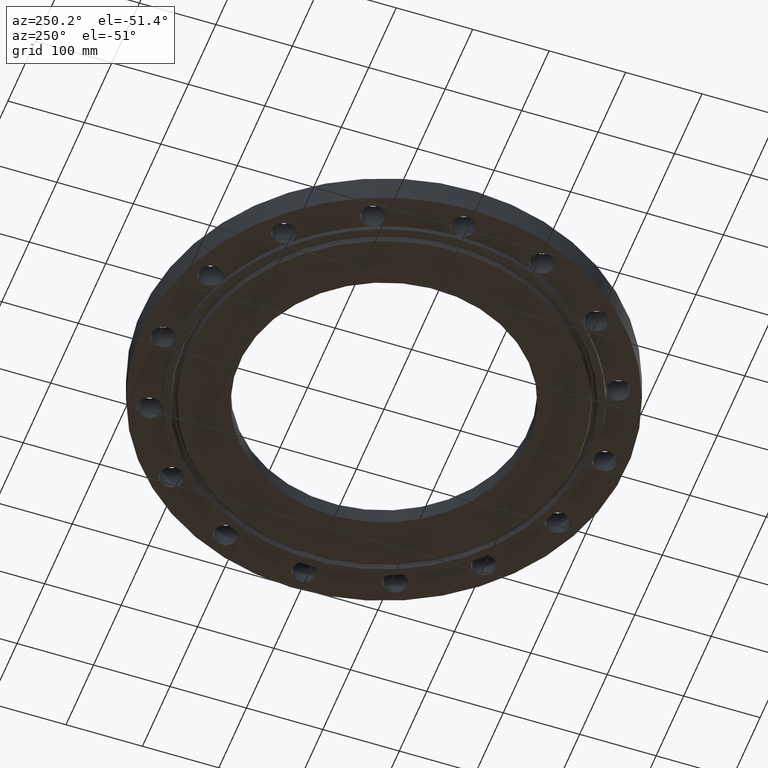
[diagram: clean part render]
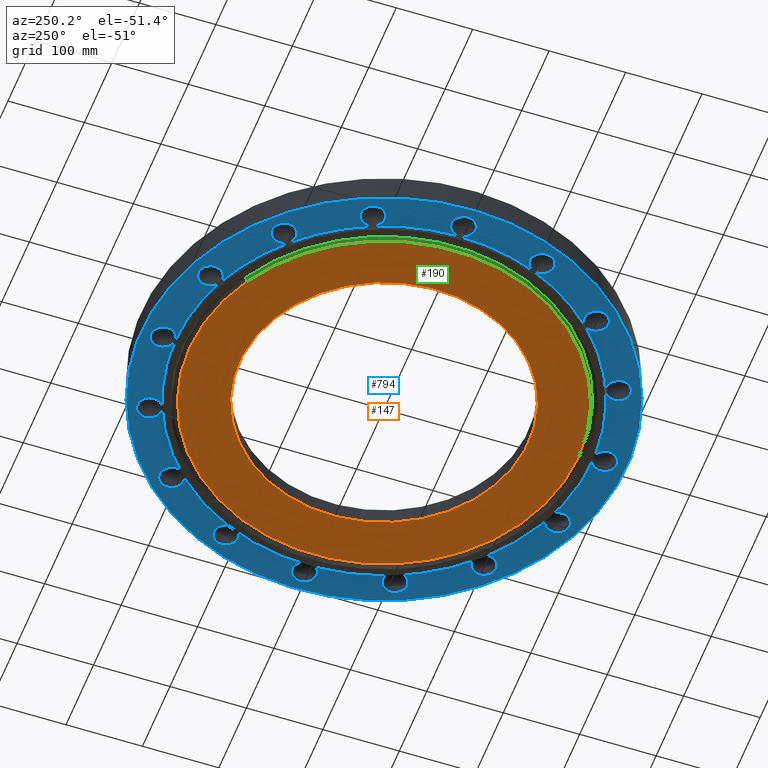
[diagram: same view with three faces highlighted in distinct colors, each labeled with its STEP entity id]
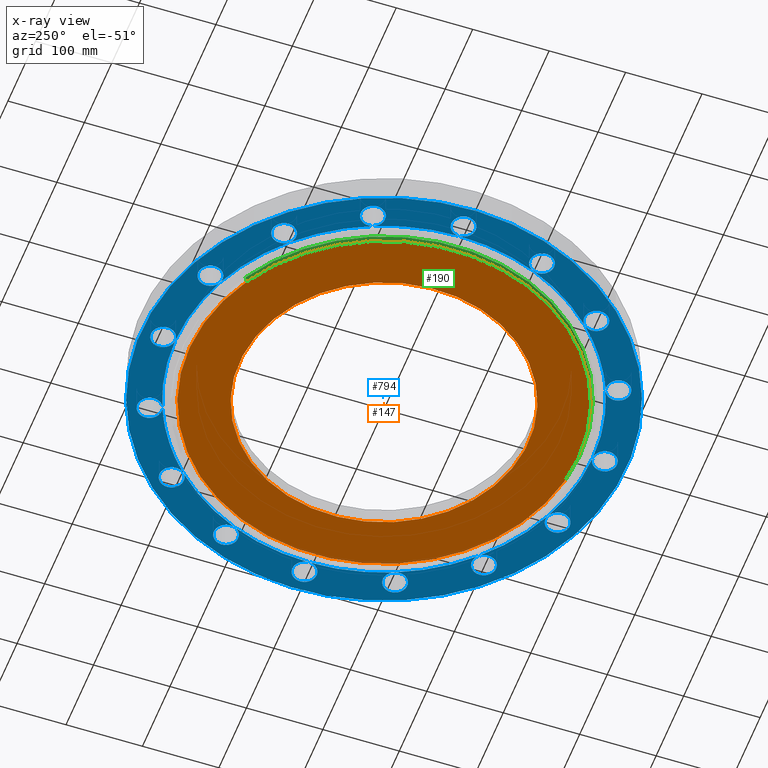
[diagram: x-ray of the same camera — body ghosted, the three highlighted faces saturated]
A machine part, auxiliary view with three faces highlighted in distinct colors.
The next image is the same camera in x-ray (body ghosted, the three faces saturated) — at least one of them is partly hidden behind the body in this view.
Their STEP definitions:

[orange] entity #147 — the highlighted planar face has unit normal (0, 0, -1).
#91=AXIS2_PLACEMENT_3D('Circle Axis2P3D',#89,#90,$) ;
#110=AXIS2_PLACEMENT_3D('Circle Axis2P3D',#108,#109,$) ;
#123=AXIS2_PLACEMENT_3D('Plane Axis2P3D',#120,#121,#122) ;
#127=AXIS2_PLACEMENT_3D('Circle Axis2P3D',#125,#126,$) ;
#136=AXIS2_PLACEMENT_3D('Circle Axis2P3D',#134,#135,$) ;
#86=CARTESIAN_POINT('Vertex',(3.56596715615,6.52745909537,-0.250000000001)) ;
#89=CARTESIAN_POINT('Axis2P3D Location',(0.,0.,-0.250000000001)) ;
#93=CARTESIAN_POINT('Vertex',(-3.56596715615,-6.52745909537,-0.250000000001)) ;
#108=CARTESIAN_POINT('Axis2P3D Location',(0.,0.,-0.250000000001)) ;
#120=CARTESIAN_POINT('Axis2P3D Location',(0.,7.43800000003,-0.250000000001)) ;
#125=CARTESIAN_POINT('Axis2P3D Location',(0.,1.1189649382E-015,-0.250000000001)) ;
#129=CARTESIAN_POINT('Vertex',(-4.8017464101,8.78953784647,-0.250000000001)) ;
#131=CARTESIAN_POINT('Vertex',(4.8017464101,-8.78953784647,-0.250000000001)) ;
#134=CARTESIAN_POINT('Axis2P3D Location',(-1.1189649382E-015,0.,-0.250000000001)) ;
#90=DIRECTION('Axis2P3D Direction',(0.,0.,-0.0393700787402)) ;
#109=DIRECTION('Axis2P3D Direction',(0.,0.,-0.0393700787402)) ;
#121=DIRECTION('Axis2P3D Direction',(0.,0.,-0.0393700787402)) ;
#122=DIRECTION('Axis2P3D XDirection',(0.0393700787402,0.,0.)) ;
#126=DIRECTION('Axis2P3D Direction',(0.,0.,-0.0393700787402)) ;
#135=DIRECTION('Axis2P3D Direction',(0.,0.,-0.0393700787402)) ;
#140=ORIENTED_EDGE('',*,*,#133,.T.) ;
#141=ORIENTED_EDGE('',*,*,#138,.T.) ;
#144=ORIENTED_EDGE('',*,*,#95,.F.) ;
#145=ORIENTED_EDGE('',*,*,#112,.F.) ;
#146=FACE_BOUND('',#143,.T.) ;
#147=ADVANCED_FACE('PartBody',(#142,#146),#124,.T.) ;
#92=CIRCLE('generated circle',#91,7.43800000003) ;
#111=CIRCLE('generated circle',#110,7.43800000003) ;
#128=CIRCLE('generated circle',#127,10.015625) ;
#137=CIRCLE('generated circle',#136,10.015625) ;
#95=EDGE_CURVE('',#87,#94,#92,.T.) ;
#112=EDGE_CURVE('',#94,#87,#111,.T.) ;
#133=EDGE_CURVE('',#130,#132,#128,.T.) ;
#138=EDGE_CURVE('',#132,#130,#137,.T.) ;
#139=EDGE_LOOP('',(#140,#141)) ;
#143=EDGE_LOOP('',(#144,#145)) ;
#142=FACE_OUTER_BOUND('',#139,.T.) ;
#124=PLANE('',#123) ;
#87=VERTEX_POINT('',#86) ;
#94=VERTEX_POINT('',#93) ;
#130=VERTEX_POINT('',#129) ;
#132=VERTEX_POINT('',#131) ;

[blue] entity #794 — the highlighted planar face has unit normal (0, 0, -1).
#242=AXIS2_PLACEMENT_3D('Circle Axis2P3D',#240,#241,$) ;
#249=AXIS2_PLACEMENT_3D('Circle Axis2P3D',#247,#248,$) ;
#256=AXIS2_PLACEMENT_3D('Circle Axis2P3D',#254,#255,$) ;
#263=AXIS2_PLACEMENT_3D('Circle Axis2P3D',#261,#262,$) ;
#270=AXIS2_PLACEMENT_3D('Circle Axis2P3D',#268,#269,$) ;
#277=AXIS2_PLACEMENT_3D('Circle Axis2P3D',#275,#276,$) ;
#284=AXIS2_PLACEMENT_3D('Circle Axis2P3D',#282,#283,$) ;
#291=AXIS2_PLACEMENT_3D('Circle Axis2P3D',#289,#290,$) ;
#298=AXIS2_PLACEMENT_3D('Circle Axis2P3D',#296,#297,$) ;
#325=AXIS2_PLACEMENT_3D('Circle Axis2P3D',#323,#324,$) ;
#332=AXIS2_PLACEMENT_3D('Circle Axis2P3D',#330,#331,$) ;
#339=AXIS2_PLACEMENT_3D('Circle Axis2P3D',#337,#338,$) ;
#346=AXIS2_PLACEMENT_3D('Circle Axis2P3D',#344,#345,$) ;
#353=AXIS2_PLACEMENT_3D('Circle Axis2P3D',#351,#352,$) ;
#360=AXIS2_PLACEMENT_3D('Circle Axis2P3D',#358,#359,$) ;
#367=AXIS2_PLACEMENT_3D('Circle Axis2P3D',#365,#366,$) ;
#374=AXIS2_PLACEMENT_3D('Circle Axis2P3D',#372,#373,$) ;
#381=AXIS2_PLACEMENT_3D('Circle Axis2P3D',#379,#380,$) ;
#402=AXIS2_PLACEMENT_3D('Plane Axis2P3D',#399,#400,#401) ;
#406=AXIS2_PLACEMENT_3D('Circle Axis2P3D',#404,#405,$) ;
#415=AXIS2_PLACEMENT_3D('Circle Axis2P3D',#413,#414,$) ;
#424=AXIS2_PLACEMENT_3D('Circle Axis2P3D',#422,#423,$) ;
#431=AXIS2_PLACEMENT_3D('Circle Axis2P3D',#429,#430,$) ;
#438=AXIS2_PLACEMENT_3D('Circle Axis2P3D',#436,#437,$) ;
#443=AXIS2_PLACEMENT_3D('Circle Axis2P3D',#441,#442,$) ;
#450=AXIS2_PLACEMENT_3D('Circle Axis2P3D',#448,#449,$) ;
#457=AXIS2_PLACEMENT_3D('Circle Axis2P3D',#455,#456,$) ;
#462=AXIS2_PLACEMENT_3D('Circle Axis2P3D',#460,#461,$) ;
#469=AXIS2_PLACEMENT_3D('Circle Axis2P3D',#467,#468,$) ;
#476=AXIS2_PLACEMENT_3D('Circle Axis2P3D',#474,#475,$) ;
#481=AXIS2_PLACEMENT_3D('Circle Axis2P3D',#479,#480,$) ;
#488=AXIS2_PLACEMENT_3D('Circle Axis2P3D',#486,#487,$) ;
#495=AXIS2_PLACEMENT_3D('Circle Axis2P3D',#493,#494,$) ;
#500=AXIS2_PLACEMENT_3D('Circle Axis2P3D',#498,#499,$) ;
#507=AXIS2_PLACEMENT_3D('Circle Axis2P3D',#505,#506,$) ;
#514=AXIS2_PLACEMENT_3D('Circle Axis2P3D',#512,#513,$) ;
#519=AXIS2_PLACEMENT_3D('Circle Axis2P3D',#517,#518,$) ;
#526=AXIS2_PLACEMENT_3D('Circle Axis2P3D',#524,#525,$) ;
#533=AXIS2_PLACEMENT_3D('Circle Axis2P3D',#531,#532,$) ;
#538=AXIS2_PLACEMENT_3D('Circle Axis2P3D',#536,#537,$) ;
#545=AXIS2_PLACEMENT_3D('Circle Axis2P3D',#543,#544,$) ;
#552=AXIS2_PLACEMENT_3D('Circle Axis2P3D',#550,#551,$) ;
#557=AXIS2_PLACEMENT_3D('Circle Axis2P3D',#555,#556,$) ;
#564=AXIS2_PLACEMENT_3D('Circle Axis2P3D',#562,#563,$) ;
#571=AXIS2_PLACEMENT_3D('Circle Axis2P3D',#569,#570,$) ;
#576=AXIS2_PLACEMENT_3D('Circle Axis2P3D',#574,#575,$) ;
#583=AXIS2_PLACEMENT_3D('Circle Axis2P3D',#581,#582,$) ;
#590=AXIS2_PLACEMENT_3D('Circle Axis2P3D',#588,#589,$) ;
#595=AXIS2_PLACEMENT_3D('Circle Axis2P3D',#593,#594,$) ;
#602=AXIS2_PLACEMENT_3D('Circle Axis2P3D',#600,#601,$) ;
#609=AXIS2_PLACEMENT_3D('Circle Axis2P3D',#607,#608,$) ;
#614=AXIS2_PLACEMENT_3D('Circle Axis2P3D',#612,#613,$) ;
#621=AXIS2_PLACEMENT_3D('Circle Axis2P3D',#619,#620,$) ;
#628=AXIS2_PLACEMENT_3D('Circle Axis2P3D',#626,#627,$) ;
#633=AXIS2_PLACEMENT_3D('Circle Axis2P3D',#631,#632,$) ;
#640=AXIS2_PLACEMENT_3D('Circle Axis2P3D',#638,#639,$) ;
#647=AXIS2_PLACEMENT_3D('Circle Axis2P3D',#645,#646,$) ;
#652=AXIS2_PLACEMENT_3D('Circle Axis2P3D',#650,#651,$) ;
#659=AXIS2_PLACEMENT_3D('Circle Axis2P3D',#657,#658,$) ;
#666=AXIS2_PLACEMENT_3D('Circle Axis2P3D',#664,#665,$) ;
#671=AXIS2_PLACEMENT_3D('Circle Axis2P3D',#669,#670,$) ;
#678=AXIS2_PLACEMENT_3D('Circle Axis2P3D',#676,#677,$) ;
#685=AXIS2_PLACEMENT_3D('Circle Axis2P3D',#683,#684,$) ;
#690=AXIS2_PLACEMENT_3D('Circle Axis2P3D',#688,#689,$) ;
#697=AXIS2_PLACEMENT_3D('Circle Axis2P3D',#695,#696,$) ;
#704=AXIS2_PLACEMENT_3D('Circle Axis2P3D',#702,#703,$) ;
#709=AXIS2_PLACEMENT_3D('Circle Axis2P3D',#707,#708,$) ;
#716=AXIS2_PLACEMENT_3D('Circle Axis2P3D',#714,#715,$) ;
#723=AXIS2_PLACEMENT_3D('Circle Axis2P3D',#721,#722,$) ;
#237=CARTESIAN_POINT('Vertex',(-5.15382454002,-9.43401254036,1.1189649382E-015)) ;
#240=CARTESIAN_POINT('Axis2P3D Location',(0.,0.,1.25883555548E-015)) ;
#244=CARTESIAN_POINT('Vertex',(-7.60139789779,-7.60139789779,0.)) ;
#247=CARTESIAN_POINT('Axis2P3D Location',(0.,0.,1.25883555548E-015)) ;
#251=CARTESIAN_POINT('Vertex',(-9.93170497454,-4.11384689794,0.)) ;
#254=CARTESIAN_POINT('Axis2P3D Location',(0.,0.,1.25883555548E-015)) ;
#258=CARTESIAN_POINT('Vertex',(-10.75,-2.23792987641E-015,0.)) ;
#261=CARTESIAN_POINT('Axis2P3D Location',(0.,0.,1.25883555548E-015)) ;
#265=CARTESIAN_POINT('Vertex',(-9.93170497454,4.11384689794,0.)) ;
#268=CARTESIAN_POINT('Axis2P3D Location',(0.,0.,1.25883555548E-015)) ;
#272=CARTESIAN_POINT('Vertex',(-7.60139789779,7.60139789779,0.)) ;
#275=CARTESIAN_POINT('Axis2P3D Location',(0.,0.,1.25883555548E-015)) ;
#279=CARTESIAN_POINT('Vertex',(-4.11384689794,9.93170497454,0.)) ;
#282=CARTESIAN_POINT('Axis2P3D Location',(0.,0.,1.25883555548E-015)) ;
#286=CARTESIAN_POINT('Vertex',(-4.60773358181E-015,10.75,1.25883555548E-015)) ;
#289=CARTESIAN_POINT('Axis2P3D Location',(0.,0.,1.25883555548E-015)) ;
#293=CARTESIAN_POINT('Vertex',(4.11384689794,9.93170497454,0.)) ;
#296=CARTESIAN_POINT('Axis2P3D Location',(0.,0.,1.25883555548E-015)) ;
#300=CARTESIAN_POINT('Vertex',(5.15382454002,9.43401254036,1.1189649382E-015)) ;
#323=CARTESIAN_POINT('Axis2P3D Location',(0.,0.,1.25883555548E-015)) ;
#327=CARTESIAN_POINT('Vertex',(7.60139789779,7.60139789779,0.)) ;
#330=CARTESIAN_POINT('Axis2P3D Location',(0.,0.,1.25883555548E-015)) ;
#334=CARTESIAN_POINT('Vertex',(9.93170497454,4.11384689794,0.)) ;
#337=CARTESIAN_POINT('Axis2P3D Location',(0.,0.,1.25883555548E-015)) ;
#341=CARTESIAN_POINT('Vertex',(10.75,2.23792987641E-015,0.)) ;
#344=CARTESIAN_POINT('Axis2P3D Location',(0.,0.,1.25883555548E-015)) ;
#348=CARTESIAN_POINT('Vertex',(9.93170497454,-4.11384689794,0.)) ;
#351=CARTESIAN_POINT('Axis2P3D Location',(0.,0.,1.25883555548E-015)) ;
#355=CARTESIAN_POINT('Vertex',(7.60139789779,-7.60139789779,0.)) ;
#358=CARTESIAN_POINT('Axis2P3D Location',(0.,0.,1.25883555548E-015)) ;
#362=CARTESIAN_POINT('Vertex',(4.11384689794,-9.93170497454,0.)) ;
#365=CARTESIAN_POINT('Axis2P3D Location',(0.,0.,1.25883555548E-015)) ;
#369=CARTESIAN_POINT('Vertex',(2.01821627603E-015,-10.75,0.)) ;
#372=CARTESIAN_POINT('Axis2P3D Location',(0.,0.,1.25883555548E-015)) ;
#376=CARTESIAN_POINT('Vertex',(-4.11384689794,-9.93170497454,0.)) ;
#379=CARTESIAN_POINT('Axis2P3D Location',(0.,0.,1.25883555548E-015)) ;
#399=CARTESIAN_POINT('Axis2P3D Location',(0.,10.75,0.)) ;
#404=CARTESIAN_POINT('Axis2P3D Location',(0.,0.,0.)) ;
#408=CARTESIAN_POINT('Vertex',(-5.99281923258,-10.9697820237,1.39870617276E-015)) ;
#410=CARTESIAN_POINT('Vertex',(5.99281923258,10.9697820237,1.39870617276E-015)) ;
#413=CARTESIAN_POINT('Axis2P3D Location',(0.,0.,0.)) ;
#422=CARTESIAN_POINT('Axis2P3D Location',(8.04333963603,8.04333963603,0.)) ;
#426=CARTESIAN_POINT('Vertex',(8.21930184299,7.44362111729,0.)) ;
#429=CARTESIAN_POINT('Axis2P3D Location',(8.04333963603,8.04333963603,0.)) ;
#433=CARTESIAN_POINT('Vertex',(7.86737742906,8.64305815477,0.)) ;
#436=CARTESIAN_POINT('Axis2P3D Location',(8.04333963603,8.04333963603,0.)) ;
#441=CARTESIAN_POINT('Axis2P3D Location',(4.35302404317,10.5091296824,0.)) ;
#445=CARTESIAN_POINT('Vertex',(4.74509426589,10.022399839,0.)) ;
#448=CARTESIAN_POINT('Axis2P3D Location',(4.35302404317,10.5091296824,0.)) ;
#452=CARTESIAN_POINT('Vertex',(3.96095382045,10.9958595258,0.)) ;
#455=CARTESIAN_POINT('Axis2P3D Location',(4.35302404317,10.5091296824,0.)) ;
#460=CARTESIAN_POINT('Axis2P3D Location',(-2.62257407392E-016,11.375,0.)) ;
#464=CARTESIAN_POINT('Vertex',(0.548489101184,11.0753590384,0.)) ;
#467=CARTESIAN_POINT('Axis2P3D Location',(1.74838271595E-017,11.375,0.)) ;
#471=CARTESIAN_POINT('Vertex',(-0.548489101184,11.6746409617,0.)) ;
#474=CARTESIAN_POINT('Axis2P3D Location',(-2.62257407392E-016,11.375,0.)) ;
#479=CARTESIAN_POINT('Axis2P3D Location',(-4.35302404317,10.5091296824,0.)) ;
#483=CARTESIAN_POINT('Vertex',(-3.73161855711,10.4421952227,0.)) ;
#486=CARTESIAN_POINT('Axis2P3D Location',(-4.35302404317,10.5091296824,0.)) ;
#490=CARTESIAN_POINT('Vertex',(-4.97442952923,10.5760641421,0.)) ;
#493=CARTESIAN_POINT('Axis2P3D Location',(-4.35302404317,10.5091296824,0.)) ;
#498=CARTESIAN_POINT('Axis2P3D Location',(-8.04333963603,8.04333963603,0.)) ;
#502=CARTESIAN_POINT('Vertex',(-7.44362111729,8.21930184299,0.)) ;
#505=CARTESIAN_POINT('Axis2P3D Location',(-8.04333963603,8.04333963603,0.)) ;
#509=CARTESIAN_POINT('Vertex',(-8.64305815477,7.86737742906,0.)) ;
#512=CARTESIAN_POINT('Axis2P3D Location',(-8.04333963603,8.04333963603,0.)) ;
#517=CARTESIAN_POINT('Axis2P3D Location',(-10.5091296824,4.35302404317,0.)) ;
#521=CARTESIAN_POINT('Vertex',(-10.022399839,4.74509426589,-1.1189649382E-015)) ;
#524=CARTESIAN_POINT('Axis2P3D Location',(-10.5091296824,4.35302404317,0.)) ;
#528=CARTESIAN_POINT('Vertex',(-10.9958595258,3.96095382045,0.)) ;
#531=CARTESIAN_POINT('Axis2P3D Location',(-10.5091296824,4.35302404317,0.)) ;
#536=CARTESIAN_POINT('Axis2P3D Location',(-11.375,-2.23792987641E-015,0.)) ;
#540=CARTESIAN_POINT('Vertex',(-11.0753590384,0.548489101184,0.)) ;
#543=CARTESIAN_POINT('Axis2P3D Location',(-11.375,-2.23792987641E-015,0.)) ;
#547=CARTESIAN_POINT('Vertex',(-11.6746409617,-0.548489101184,0.)) ;
#550=CARTESIAN_POINT('Axis2P3D Location',(-11.375,-2.23792987641E-015,0.)) ;
#555=CARTESIAN_POINT('Axis2P3D Location',(-10.5091296824,-4.35302404317,0.)) ;
#559=CARTESIAN_POINT('Vertex',(-10.4421952227,-3.73161855711,0.)) ;
#562=CARTESIAN_POINT('Axis2P3D Location',(-10.5091296824,-4.35302404317,0.)) ;
#566=CARTESIAN_POINT('Vertex',(-10.5760641421,-4.97442952923,0.)) ;
#569=CARTESIAN_POINT('Axis2P3D Location',(-10.5091296824,-4.35302404317,0.)) ;
#574=CARTESIAN_POINT('Axis2P3D Location',(-8.04333963603,-8.04333963603,0.)) ;
#578=CARTESIAN_POINT('Vertex',(-8.21930184299,-7.44362111729,0.)) ;
#581=CARTESIAN_POINT('Axis2P3D Location',(-8.04333963603,-8.04333963603,0.)) ;
#585=CARTESIAN_POINT('Vertex',(-7.86737742906,-8.64305815477,0.)) ;
#588=CARTESIAN_POINT('Axis2P3D Location',(-8.04333963603,-8.04333963603,0.)) ;
#593=CARTESIAN_POINT('Axis2P3D Location',(-4.35302404317,-10.5091296824,0.)) ;
#597=CARTESIAN_POINT('Vertex',(-4.74509426589,-10.022399839,0.)) ;
#600=CARTESIAN_POINT('Axis2P3D Location',(-4.35302404317,-10.5091296824,0.)) ;
#604=CARTESIAN_POINT('Vertex',(-3.96095382045,-10.9958595258,0.)) ;
#607=CARTESIAN_POINT('Axis2P3D Location',(-4.35302404317,-10.5091296824,0.)) ;
#612=CARTESIAN_POINT('Axis2P3D Location',(2.13302691345E-015,-11.375,0.)) ;
#616=CARTESIAN_POINT('Vertex',(-0.548489101184,-11.0753590384,0.)) ;
#619=CARTESIAN_POINT('Axis2P3D Location',(8.74191357973E-016,-11.375,0.)) ;
#623=CARTESIAN_POINT('Vertex',(0.548489101184,-11.6746409617,0.)) ;
#626=CARTESIAN_POINT('Axis2P3D Location',(2.13302691345E-015,-11.375,0.)) ;
#631=CARTESIAN_POINT('Axis2P3D Location',(4.35302404317,-10.5091296824,0.)) ;
#635=CARTESIAN_POINT('Vertex',(3.73161855711,-10.4421952227,0.)) ;
#638=CARTESIAN_POINT('Axis2P3D Location',(4.35302404317,-10.5091296824,0.)) ;
#642=CARTESIAN_POINT('Vertex',(4.97442952923,-10.5760641421,0.)) ;
#645=CARTESIAN_POINT('Axis2P3D Location',(4.35302404317,-10.5091296824,0.)) ;
#650=CARTESIAN_POINT('Axis2P3D Location',(8.04333963603,-8.04333963603,0.)) ;
#654=CARTESIAN_POINT('Vertex',(7.44362111729,-8.21930184299,0.)) ;
#657=CARTESIAN_POINT('Axis2P3D Location',(8.04333963603,-8.04333963603,0.)) ;
#661=CARTESIAN_POINT('Vertex',(8.64305815477,-7.86737742906,0.)) ;
#664=CARTESIAN_POINT('Axis2P3D Location',(8.04333963603,-8.04333963603,0.)) ;
#669=CARTESIAN_POINT('Axis2P3D Location',(10.5091296824,-4.35302404317,0.)) ;
#673=CARTESIAN_POINT('Vertex',(10.022399839,-4.74509426589,0.)) ;
#676=CARTESIAN_POINT('Axis2P3D Location',(10.5091296824,-4.35302404317,0.)) ;
#680=CARTESIAN_POINT('Vertex',(10.9958595258,-3.96095382045,0.)) ;
#683=CARTESIAN_POINT('Axis2P3D Location',(10.5091296824,-4.35302404317,0.)) ;
#688=CARTESIAN_POINT('Axis2P3D Location',(11.375,2.23792987641E-015,0.)) ;
#692=CARTESIAN_POINT('Vertex',(11.0753590384,-0.548489101184,0.)) ;
#695=CARTESIAN_POINT('Axis2P3D Location',(11.375,0.,0.)) ;
#699=CARTESIAN_POINT('Vertex',(11.6746409617,0.548489101184,0.)) ;
#702=CARTESIAN_POINT('Axis2P3D Location',(11.375,2.23792987641E-015,0.)) ;
#707=CARTESIAN_POINT('Axis2P3D Location',(10.5091296824,4.35302404317,0.)) ;
#711=CARTESIAN_POINT('Vertex',(10.4421952227,3.73161855711,0.)) ;
#714=CARTESIAN_POINT('Axis2P3D Location',(10.5091296824,4.35302404317,0.)) ;
#718=CARTESIAN_POINT('Vertex',(10.5760641421,4.97442952923,0.)) ;
#721=CARTESIAN_POINT('Axis2P3D Location',(10.5091296824,4.35302404317,0.)) ;
#241=DIRECTION('Axis2P3D Direction',(0.,0.,-0.0393700787402)) ;
#248=DIRECTION('Axis2P3D Direction',(0.,0.,-0.0393700787402)) ;
#255=DIRECTION('Axis2P3D Direction',(0.,0.,-0.0393700787402)) ;
#262=DIRECTION('Axis2P3D Direction',(0.,0.,-0.0393700787402)) ;
#269=DIRECTION('Axis2P3D Direction',(0.,0.,-0.0393700787402)) ;
#276=DIRECTION('Axis2P3D Direction',(0.,0.,-0.0393700787402)) ;
#283=DIRECTION('Axis2P3D Direction',(0.,0.,-0.0393700787402)) ;
#290=DIRECTION('Axis2P3D Direction',(0.,0.,-0.0393700787402)) ;
#297=DIRECTION('Axis2P3D Direction',(0.,0.,-0.0393700787402)) ;
#324=DIRECTION('Axis2P3D Direction',(0.,0.,-0.0393700787402)) ;
#331=DIRECTION('Axis2P3D Direction',(0.,0.,-0.0393700787402)) ;
#338=DIRECTION('Axis2P3D Direction',(0.,0.,-0.0393700787402)) ;
#345=DIRECTION('Axis2P3D Direction',(0.,0.,-0.0393700787402)) ;
#352=DIRECTION('Axis2P3D Direction',(0.,0.,-0.0393700787402)) ;
#359=DIRECTION('Axis2P3D Direction',(0.,0.,-0.0393700787402)) ;
#366=DIRECTION('Axis2P3D Direction',(0.,0.,-0.0393700787402)) ;
#373=DIRECTION('Axis2P3D Direction',(0.,0.,-0.0393700787402)) ;
#380=DIRECTION('Axis2P3D Direction',(0.,0.,-0.0393700787402)) ;
#400=DIRECTION('Axis2P3D Direction',(0.,0.,-0.0393700787402)) ;
#401=DIRECTION('Axis2P3D XDirection',(0.0393700787402,0.,0.)) ;
#405=DIRECTION('Axis2P3D Direction',(0.,0.,-0.0393700787402)) ;
#414=DIRECTION('Axis2P3D Direction',(0.,0.,-0.0393700787402)) ;
#423=DIRECTION('Axis2P3D Direction',(0.,0.,-0.0393700787402)) ;
#430=DIRECTION('Axis2P3D Direction',(0.,0.,-0.0393700787402)) ;
#437=DIRECTION('Axis2P3D Direction',(0.,0.,-0.0393700787402)) ;
#442=DIRECTION('Axis2P3D Direction',(0.,0.,-0.0393700787402)) ;
#449=DIRECTION('Axis2P3D Direction',(0.,0.,-0.0393700787402)) ;
#456=DIRECTION('Axis2P3D Direction',(0.,0.,-0.0393700787402)) ;
#461=DIRECTION('Axis2P3D Direction',(0.,0.,-0.0393700787402)) ;
#468=DIRECTION('Axis2P3D Direction',(0.,0.,-0.0393700787402)) ;
#475=DIRECTION('Axis2P3D Direction',(0.,0.,-0.0393700787402)) ;
#480=DIRECTION('Axis2P3D Direction',(0.,0.,-0.0393700787402)) ;
#487=DIRECTION('Axis2P3D Direction',(0.,0.,-0.0393700787402)) ;
#494=DIRECTION('Axis2P3D Direction',(0.,0.,-0.0393700787402)) ;
#499=DIRECTION('Axis2P3D Direction',(0.,0.,-0.0393700787402)) ;
#506=DIRECTION('Axis2P3D Direction',(0.,0.,-0.0393700787402)) ;
#513=DIRECTION('Axis2P3D Direction',(0.,0.,-0.0393700787402)) ;
#518=DIRECTION('Axis2P3D Direction',(0.,0.,-0.0393700787402)) ;
#525=DIRECTION('Axis2P3D Direction',(0.,0.,-0.0393700787402)) ;
#532=DIRECTION('Axis2P3D Direction',(0.,0.,-0.0393700787402)) ;
#537=DIRECTION('Axis2P3D Direction',(0.,0.,-0.0393700787402)) ;
#544=DIRECTION('Axis2P3D Direction',(0.,0.,-0.0393700787402)) ;
#551=DIRECTION('Axis2P3D Direction',(0.,0.,-0.0393700787402)) ;
#556=DIRECTION('Axis2P3D Direction',(0.,0.,-0.0393700787402)) ;
#563=DIRECTION('Axis2P3D Direction',(0.,0.,-0.0393700787402)) ;
#570=DIRECTION('Axis2P3D Direction',(0.,0.,-0.0393700787402)) ;
#575=DIRECTION('Axis2P3D Direction',(0.,0.,-0.0393700787402)) ;
#582=DIRECTION('Axis2P3D Direction',(0.,0.,-0.0393700787402)) ;
#589=DIRECTION('Axis2P3D Direction',(0.,0.,-0.0393700787402)) ;
#594=DIRECTION('Axis2P3D Direction',(0.,0.,-0.0393700787402)) ;
#601=DIRECTION('Axis2P3D Direction',(0.,0.,-0.0393700787402)) ;
#608=DIRECTION('Axis2P3D Direction',(0.,0.,-0.0393700787402)) ;
#613=DIRECTION('Axis2P3D Direction',(0.,0.,-0.0393700787402)) ;
#620=DIRECTION('Axis2P3D Direction',(0.,0.,-0.0393700787402)) ;
#627=DIRECTION('Axis2P3D Direction',(0.,0.,-0.0393700787402)) ;
#632=DIRECTION('Axis2P3D Direction',(0.,0.,-0.0393700787402)) ;
#639=DIRECTION('Axis2P3D Direction',(0.,0.,-0.0393700787402)) ;
#646=DIRECTION('Axis2P3D Direction',(0.,0.,-0.0393700787402)) ;
#651=DIRECTION('Axis2P3D Direction',(0.,0.,-0.0393700787402)) ;
#658=DIRECTION('Axis2P3D Direction',(0.,0.,-0.0393700787402)) ;
#665=DIRECTION('Axis2P3D Direction',(0.,0.,-0.0393700787402)) ;
#670=DIRECTION('Axis2P3D Direction',(0.,0.,-0.0393700787402)) ;
#677=DIRECTION('Axis2P3D Direction',(0.,0.,-0.0393700787402)) ;
#684=DIRECTION('Axis2P3D Direction',(0.,0.,-0.0393700787402)) ;
#689=DIRECTION('Axis2P3D Direction',(0.,0.,-0.0393700787402)) ;
#696=DIRECTION('Axis2P3D Direction',(0.,0.,-0.0393700787402)) ;
#703=DIRECTION('Axis2P3D Direction',(0.,0.,-0.0393700787402)) ;
#708=DIRECTION('Axis2P3D Direction',(0.,0.,-0.0393700787402)) ;
#715=DIRECTION('Axis2P3D Direction',(0.,0.,-0.0393700787402)) ;
#722=DIRECTION('Axis2P3D Direction',(0.,0.,-0.0393700787402)) ;
#419=ORIENTED_EDGE('',*,*,#412,.T.) ;
#420=ORIENTED_EDGE('',*,*,#417,.T.) ;
#727=ORIENTED_EDGE('',*,*,#428,.F.) ;
#728=ORIENTED_EDGE('',*,*,#435,.F.) ;
#729=ORIENTED_EDGE('',*,*,#440,.F.) ;
#730=ORIENTED_EDGE('',*,*,#329,.F.) ;
#731=ORIENTED_EDGE('',*,*,#302,.F.) ;
#732=ORIENTED_EDGE('',*,*,#447,.F.) ;
#733=ORIENTED_EDGE('',*,*,#454,.F.) ;
#734=ORIENTED_EDGE('',*,*,#459,.F.) ;
#735=ORIENTED_EDGE('',*,*,#295,.F.) ;
#736=ORIENTED_EDGE('',*,*,#466,.F.) ;
#737=ORIENTED_EDGE('',*,*,#473,.F.) ;
#738=ORIENTED_EDGE('',*,*,#478,.F.) ;
#739=ORIENTED_EDGE('',*,*,#288,.F.) ;
#740=ORIENTED_EDGE('',*,*,#485,.F.) ;
#741=ORIENTED_EDGE('',*,*,#492,.F.) ;
#742=ORIENTED_EDGE('',*,*,#497,.F.) ;
#743=ORIENTED_EDGE('',*,*,#281,.F.) ;
#744=ORIENTED_EDGE('',*,*,#504,.F.) ;
#745=ORIENTED_EDGE('',*,*,#511,.F.) ;
#746=ORIENTED_EDGE('',*,*,#516,.F.) ;
#747=ORIENTED_EDGE('',*,*,#274,.F.) ;
#748=ORIENTED_EDGE('',*,*,#523,.F.) ;
#749=ORIENTED_EDGE('',*,*,#530,.F.) ;
#750=ORIENTED_EDGE('',*,*,#535,.F.) ;
#751=ORIENTED_EDGE('',*,*,#267,.F.) ;
#752=ORIENTED_EDGE('',*,*,#542,.F.) ;
#753=ORIENTED_EDGE('',*,*,#549,.F.) ;
#754=ORIENTED_EDGE('',*,*,#554,.F.) ;
#755=ORIENTED_EDGE('',*,*,#260,.F.) ;
#756=ORIENTED_EDGE('',*,*,#561,.F.) ;
#757=ORIENTED_EDGE('',*,*,#568,.F.) ;
#758=ORIENTED_EDGE('',*,*,#573,.F.) ;
#759=ORIENTED_EDGE('',*,*,#253,.F.) ;
#760=ORIENTED_EDGE('',*,*,#580,.F.) ;
#761=ORIENTED_EDGE('',*,*,#587,.F.) ;
#762=ORIENTED_EDGE('',*,*,#592,.F.) ;
#763=ORIENTED_EDGE('',*,*,#246,.F.) ;
#764=ORIENTED_EDGE('',*,*,#383,.F.) ;
#765=ORIENTED_EDGE('',*,*,#599,.F.) ;
#766=ORIENTED_EDGE('',*,*,#606,.F.) ;
#767=ORIENTED_EDGE('',*,*,#611,.F.) ;
#768=ORIENTED_EDGE('',*,*,#378,.F.) ;
#769=ORIENTED_EDGE('',*,*,#618,.F.) ;
#770=ORIENTED_EDGE('',*,*,#625,.F.) ;
#771=ORIENTED_EDGE('',*,*,#630,.F.) ;
#772=ORIENTED_EDGE('',*,*,#371,.F.) ;
#773=ORIENTED_EDGE('',*,*,#637,.F.) ;
#774=ORIENTED_EDGE('',*,*,#644,.F.) ;
#775=ORIENTED_EDGE('',*,*,#649,.F.) ;
#776=ORIENTED_EDGE('',*,*,#364,.F.) ;
#777=ORIENTED_EDGE('',*,*,#656,.F.) ;
#778=ORIENTED_EDGE('',*,*,#663,.F.) ;
#779=ORIENTED_EDGE('',*,*,#668,.F.) ;
#780=ORIENTED_EDGE('',*,*,#357,.F.) ;
#781=ORIENTED_EDGE('',*,*,#675,.F.) ;
#782=ORIENTED_EDGE('',*,*,#682,.F.) ;
#783=ORIENTED_EDGE('',*,*,#687,.F.) ;
#784=ORIENTED_EDGE('',*,*,#350,.F.) ;
#785=ORIENTED_EDGE('',*,*,#694,.F.) ;
#786=ORIENTED_EDGE('',*,*,#701,.F.) ;
#787=ORIENTED_EDGE('',*,*,#706,.F.) ;
#788=ORIENTED_EDGE('',*,*,#343,.F.) ;
#789=ORIENTED_EDGE('',*,*,#713,.F.) ;
#790=ORIENTED_EDGE('',*,*,#720,.F.) ;
#791=ORIENTED_EDGE('',*,*,#725,.F.) ;
#792=ORIENTED_EDGE('',*,*,#336,.F.) ;
#793=FACE_BOUND('',#726,.T.) ;
#794=ADVANCED_FACE('PartBody',(#421,#793),#403,.T.) ;
#243=CIRCLE('generated circle',#242,10.75) ;
#250=CIRCLE('generated circle',#249,10.75) ;
#257=CIRCLE('generated circle',#256,10.75) ;
#264=CIRCLE('generated circle',#263,10.75) ;
#271=CIRCLE('generated circle',#270,10.75) ;
#278=CIRCLE('generated circle',#277,10.75) ;
#285=CIRCLE('generated circle',#284,10.75) ;
#292=CIRCLE('generated circle',#291,10.75) ;
#299=CIRCLE('generated circle',#298,10.75) ;
#326=CIRCLE('generated circle',#325,10.75) ;
#333=CIRCLE('generated circle',#332,10.75) ;
#340=CIRCLE('generated circle',#339,10.75) ;
#347=CIRCLE('generated circle',#346,10.75) ;
#354=CIRCLE('generated circle',#353,10.75) ;
#361=CIRCLE('generated circle',#360,10.75) ;
#368=CIRCLE('generated circle',#367,10.75) ;
#375=CIRCLE('generated circle',#374,10.75) ;
#382=CIRCLE('generated circle',#381,10.75) ;
#407=CIRCLE('generated circle',#406,12.5000000001) ;
#416=CIRCLE('generated circle',#415,12.5000000001) ;
#425=CIRCLE('generated circle',#424,0.625000000002) ;
#432=CIRCLE('generated circle',#431,0.625000000002) ;
#439=CIRCLE('generated circle',#438,0.625000000002) ;
#444=CIRCLE('generated circle',#443,0.625000000003) ;
#451=CIRCLE('generated circle',#450,0.625000000003) ;
#458=CIRCLE('generated circle',#457,0.625000000003) ;
#463=CIRCLE('generated circle',#462,0.625000000003) ;
#470=CIRCLE('generated circle',#469,0.625000000003) ;
#477=CIRCLE('generated circle',#476,0.625000000003) ;
#482=CIRCLE('generated circle',#481,0.625000000003) ;
#489=CIRCLE('generated circle',#488,0.625000000003) ;
#496=CIRCLE('generated circle',#495,0.625000000003) ;
#501=CIRCLE('generated circle',#500,0.625000000002) ;
#508=CIRCLE('generated circle',#507,0.625000000002) ;
#515=CIRCLE('generated circle',#514,0.625000000002) ;
#520=CIRCLE('generated circle',#519,0.625000000003) ;
#527=CIRCLE('generated circle',#526,0.625000000003) ;
#534=CIRCLE('generated circle',#533,0.625000000003) ;
#539=CIRCLE('generated circle',#538,0.625000000003) ;
#546=CIRCLE('generated circle',#545,0.625000000003) ;
#553=CIRCLE('generated circle',#552,0.625000000003) ;
#558=CIRCLE('generated circle',#557,0.625000000003) ;
#565=CIRCLE('generated circle',#564,0.625000000003) ;
#572=CIRCLE('generated circle',#571,0.625000000003) ;
#577=CIRCLE('generated circle',#576,0.625000000002) ;
#584=CIRCLE('generated circle',#583,0.625000000002) ;
#591=CIRCLE('generated circle',#590,0.625000000002) ;
#596=CIRCLE('generated circle',#595,0.625000000003) ;
#603=CIRCLE('generated circle',#602,0.625000000003) ;
#610=CIRCLE('generated circle',#609,0.625000000003) ;
#615=CIRCLE('generated circle',#614,0.625000000003) ;
#622=CIRCLE('generated circle',#621,0.625000000003) ;
#629=CIRCLE('generated circle',#628,0.625000000003) ;
#634=CIRCLE('generated circle',#633,0.625000000003) ;
#641=CIRCLE('generated circle',#640,0.625000000003) ;
#648=CIRCLE('generated circle',#647,0.625000000003) ;
#653=CIRCLE('generated circle',#652,0.625000000002) ;
#660=CIRCLE('generated circle',#659,0.625000000002) ;
#667=CIRCLE('generated circle',#666,0.625000000002) ;
#672=CIRCLE('generated circle',#671,0.625000000003) ;
#679=CIRCLE('generated circle',#678,0.625000000003) ;
#686=CIRCLE('generated circle',#685,0.625000000003) ;
#691=CIRCLE('generated circle',#690,0.625000000003) ;
#698=CIRCLE('generated circle',#697,0.625000000003) ;
#705=CIRCLE('generated circle',#704,0.625000000003) ;
#710=CIRCLE('generated circle',#709,0.625000000003) ;
#717=CIRCLE('generated circle',#716,0.625000000003) ;
#724=CIRCLE('generated circle',#723,0.625000000003) ;
#246=EDGE_CURVE('',#238,#245,#243,.T.) ;
#253=EDGE_CURVE('',#245,#252,#250,.T.) ;
#260=EDGE_CURVE('',#252,#259,#257,.T.) ;
#267=EDGE_CURVE('',#259,#266,#264,.T.) ;
#274=EDGE_CURVE('',#266,#273,#271,.T.) ;
#281=EDGE_CURVE('',#273,#280,#278,.T.) ;
#288=EDGE_CURVE('',#280,#287,#285,.T.) ;
#295=EDGE_CURVE('',#287,#294,#292,.T.) ;
#302=EDGE_CURVE('',#294,#301,#299,.T.) ;
#329=EDGE_CURVE('',#301,#328,#326,.T.) ;
#336=EDGE_CURVE('',#328,#335,#333,.T.) ;
#343=EDGE_CURVE('',#335,#342,#340,.T.) ;
#350=EDGE_CURVE('',#342,#349,#347,.T.) ;
#357=EDGE_CURVE('',#349,#356,#354,.T.) ;
#364=EDGE_CURVE('',#356,#363,#361,.T.) ;
#371=EDGE_CURVE('',#363,#370,#368,.T.) ;
#378=EDGE_CURVE('',#370,#377,#375,.T.) ;
#383=EDGE_CURVE('',#377,#238,#382,.T.) ;
#412=EDGE_CURVE('',#409,#411,#407,.T.) ;
#417=EDGE_CURVE('',#411,#409,#416,.T.) ;
#428=EDGE_CURVE('',#427,#328,#425,.T.) ;
#435=EDGE_CURVE('',#434,#427,#432,.T.) ;
#440=EDGE_CURVE('',#328,#434,#439,.T.) ;
#447=EDGE_CURVE('',#446,#294,#444,.T.) ;
#454=EDGE_CURVE('',#453,#446,#451,.T.) ;
#459=EDGE_CURVE('',#294,#453,#458,.T.) ;
#466=EDGE_CURVE('',#465,#287,#463,.T.) ;
#473=EDGE_CURVE('',#472,#465,#470,.T.) ;
#478=EDGE_CURVE('',#287,#472,#477,.T.) ;
#485=EDGE_CURVE('',#484,#280,#482,.T.) ;
#492=EDGE_CURVE('',#491,#484,#489,.T.) ;
#497=EDGE_CURVE('',#280,#491,#496,.T.) ;
#504=EDGE_CURVE('',#503,#273,#501,.T.) ;
#511=EDGE_CURVE('',#510,#503,#508,.T.) ;
#516=EDGE_CURVE('',#273,#510,#515,.T.) ;
#523=EDGE_CURVE('',#522,#266,#520,.T.) ;
#530=EDGE_CURVE('',#529,#522,#527,.T.) ;
#535=EDGE_CURVE('',#266,#529,#534,.T.) ;
#542=EDGE_CURVE('',#541,#259,#539,.T.) ;
#549=EDGE_CURVE('',#548,#541,#546,.T.) ;
#554=EDGE_CURVE('',#259,#548,#553,.T.) ;
#561=EDGE_CURVE('',#560,#252,#558,.T.) ;
#568=EDGE_CURVE('',#567,#560,#565,.T.) ;
#573=EDGE_CURVE('',#252,#567,#572,.T.) ;
#580=EDGE_CURVE('',#579,#245,#577,.T.) ;
#587=EDGE_CURVE('',#586,#579,#584,.T.) ;
#592=EDGE_CURVE('',#245,#586,#591,.T.) ;
#599=EDGE_CURVE('',#598,#377,#596,.T.) ;
#606=EDGE_CURVE('',#605,#598,#603,.T.) ;
#611=EDGE_CURVE('',#377,#605,#610,.T.) ;
#618=EDGE_CURVE('',#617,#370,#615,.T.) ;
#625=EDGE_CURVE('',#624,#617,#622,.T.) ;
#630=EDGE_CURVE('',#370,#624,#629,.T.) ;
#637=EDGE_CURVE('',#636,#363,#634,.T.) ;
#644=EDGE_CURVE('',#643,#636,#641,.T.) ;
#649=EDGE_CURVE('',#363,#643,#648,.T.) ;
#656=EDGE_CURVE('',#655,#356,#653,.T.) ;
#663=EDGE_CURVE('',#662,#655,#660,.T.) ;
#668=EDGE_CURVE('',#356,#662,#667,.T.) ;
#675=EDGE_CURVE('',#674,#349,#672,.T.) ;
#682=EDGE_CURVE('',#681,#674,#679,.T.) ;
#687=EDGE_CURVE('',#349,#681,#686,.T.) ;
#694=EDGE_CURVE('',#693,#342,#691,.T.) ;
#701=EDGE_CURVE('',#700,#693,#698,.T.) ;
#706=EDGE_CURVE('',#342,#700,#705,.T.) ;
#713=EDGE_CURVE('',#712,#335,#710,.T.) ;
#720=EDGE_CURVE('',#719,#712,#717,.T.) ;
#725=EDGE_CURVE('',#335,#719,#724,.T.) ;
#418=EDGE_LOOP('',(#419,#420)) ;
#726=EDGE_LOOP('',(#727,#728,#729,#730,#731,#732,#733,#734,#735,#736,#737,#738,#739,#740,#741,#742,#743,#744,#745,#746,#747,#748,#749,#750,#751,#752,#753,#754,#755,#756,#757,#758,#759,#760,#761,#762,#763,#764,#765,#766,#767,#768,#769,#770,#771,#772,#773,#774,#775,#776,#777,#778,#779,#780,#781,#782,#783,#784,#785,#786,#787,#788,#789,#790,#791,#792)) ;
#421=FACE_OUTER_BOUND('',#418,.T.) ;
#403=PLANE('',#402) ;
#238=VERTEX_POINT('',#237) ;
#245=VERTEX_POINT('',#244) ;
#252=VERTEX_POINT('',#251) ;
#259=VERTEX_POINT('',#258) ;
#266=VERTEX_POINT('',#265) ;
#273=VERTEX_POINT('',#272) ;
#280=VERTEX_POINT('',#279) ;
#287=VERTEX_POINT('',#286) ;
#294=VERTEX_POINT('',#293) ;
#301=VERTEX_POINT('',#300) ;
#328=VERTEX_POINT('',#327) ;
#335=VERTEX_POINT('',#334) ;
#342=VERTEX_POINT('',#341) ;
#349=VERTEX_POINT('',#348) ;
#356=VERTEX_POINT('',#355) ;
#363=VERTEX_POINT('',#362) ;
#370=VERTEX_POINT('',#369) ;
#377=VERTEX_POINT('',#376) ;
#409=VERTEX_POINT('',#408) ;
#411=VERTEX_POINT('',#410) ;
#427=VERTEX_POINT('',#426) ;
#434=VERTEX_POINT('',#433) ;
#446=VERTEX_POINT('',#445) ;
#453=VERTEX_POINT('',#452) ;
#465=VERTEX_POINT('',#464) ;
#472=VERTEX_POINT('',#471) ;
#484=VERTEX_POINT('',#483) ;
#491=VERTEX_POINT('',#490) ;
#503=VERTEX_POINT('',#502) ;
#510=VERTEX_POINT('',#509) ;
#522=VERTEX_POINT('',#521) ;
#529=VERTEX_POINT('',#528) ;
#541=VERTEX_POINT('',#540) ;
#548=VERTEX_POINT('',#547) ;
#560=VERTEX_POINT('',#559) ;
#567=VERTEX_POINT('',#566) ;
#579=VERTEX_POINT('',#578) ;
#586=VERTEX_POINT('',#585) ;
#598=VERTEX_POINT('',#597) ;
#605=VERTEX_POINT('',#604) ;
#617=VERTEX_POINT('',#616) ;
#624=VERTEX_POINT('',#623) ;
#636=VERTEX_POINT('',#635) ;
#643=VERTEX_POINT('',#642) ;
#655=VERTEX_POINT('',#654) ;
#662=VERTEX_POINT('',#661) ;
#674=VERTEX_POINT('',#673) ;
#681=VERTEX_POINT('',#680) ;
#693=VERTEX_POINT('',#692) ;
#700=VERTEX_POINT('',#699) ;
#712=VERTEX_POINT('',#711) ;
#719=VERTEX_POINT('',#718) ;

[green] entity #190 — the highlighted conical surface has half-angle 23 deg.
#136=AXIS2_PLACEMENT_3D('Circle Axis2P3D',#134,#135,$) ;
#151=AXIS2_PLACEMENT_3D('Cone Axis2P3D',#148,#149,#150) ;
#181=AXIS2_PLACEMENT_3D('Circle Axis2P3D',#179,#180,$) ;
#129=CARTESIAN_POINT('Vertex',(-4.8017464101,8.78953784647,-0.250000000001)) ;
#131=CARTESIAN_POINT('Vertex',(4.8017464101,-8.78953784647,-0.250000000001)) ;
#134=CARTESIAN_POINT('Axis2P3D Location',(-1.1189649382E-015,0.,-0.250000000001)) ;
#148=CARTESIAN_POINT('Axis2P3D Location',(0.,0.,-0.310000000001)) ;
#153=CARTESIAN_POINT('Line Origine',(-4.82524709519,8.83255556197,-0.134519826118)) ;
#157=CARTESIAN_POINT('Vertex',(-4.84874778028,8.87557327748,-0.0190396522348)) ;
#164=CARTESIAN_POINT('Vertex',(4.84874778028,-8.87557327748,-0.0190396522348)) ;
#167=CARTESIAN_POINT('Line Origine',(4.82524709519,-8.83255556197,-0.134519826118)) ;
#179=CARTESIAN_POINT('Axis2P3D Location',(0.,0.,-0.0190396522348)) ;
#135=DIRECTION('Axis2P3D Direction',(0.,0.,-0.0393700787402)) ;
#149=DIRECTION('Axis2P3D Direction',(0.,0.,0.0393700787402)) ;
#150=DIRECTION('Axis2P3D XDirection',(-0.0188750212049,0.0345504945626,0.)) ;
#154=DIRECTION('Vector Direction',(-0.00737505833565,0.0134999537303,0.0362403485611)) ;
#168=DIRECTION('Vector Direction',(0.00737505833565,-0.0134999537303,0.0362403485611)) ;
#180=DIRECTION('Axis2P3D Direction',(0.,0.,0.0393700787402)) ;
#155=VECTOR('Line Direction',#154,0.0393700787402) ;
#169=VECTOR('Line Direction',#168,0.0393700787402) ;
#185=ORIENTED_EDGE('',*,*,#171,.F.) ;
#186=ORIENTED_EDGE('',*,*,#183,.F.) ;
#187=ORIENTED_EDGE('',*,*,#159,.T.) ;
#188=ORIENTED_EDGE('',*,*,#138,.F.) ;
#190=ADVANCED_FACE('PartBody',(#189),#152,.T.) ;
#137=CIRCLE('generated circle',#136,10.015625) ;
#182=CIRCLE('generated circle',#181,10.1136618512) ;
#152=CONICAL_SURFACE('Cone',#151,9.99015651107,0.401425727959) ;
#138=EDGE_CURVE('',#132,#130,#137,.T.) ;
#159=EDGE_CURVE('',#158,#130,#156,.F.) ;
#171=EDGE_CURVE('',#165,#132,#170,.F.) ;
#183=EDGE_CURVE('',#158,#165,#182,.T.) ;
#184=EDGE_LOOP('',(#185,#186,#187,#188)) ;
#189=FACE_OUTER_BOUND('',#184,.T.) ;
#156=LINE('Line',#153,#155) ;
#170=LINE('Line',#167,#169) ;
#130=VERTEX_POINT('',#129) ;
#132=VERTEX_POINT('',#131) ;
#158=VERTEX_POINT('',#157) ;
#165=VERTEX_POINT('',#164) ;